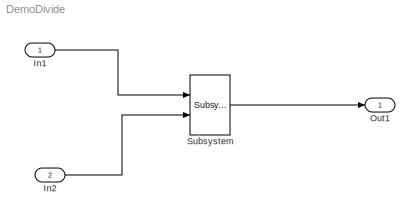
MODEL DemoDivide
KIND model
CONFIG PreLoadFcn = addpath('../CommonLinraries')
BLOCK [Inport] In1
  IconDisplay = Port number
  SID = 2
BLOCK [Inport] In2
  IconDisplay = Port number
  Port = 2
  SID = 3
BLOCK [Outport] Out1
  IconDisplay = Port number
  SID = 4
BLOCK [Reference] Subsystem  REF=DemoDivideLib/Subsystem
  Ports = [2, 1]
  SID = 5
  SourceBlock = DemoDivideLib/Subsystem
  SourceType = SubSystem
LINE In1:1 -> Subsystem:1
LINE In2:1 -> Subsystem:2
LINE Subsystem:1 -> Out1:1
